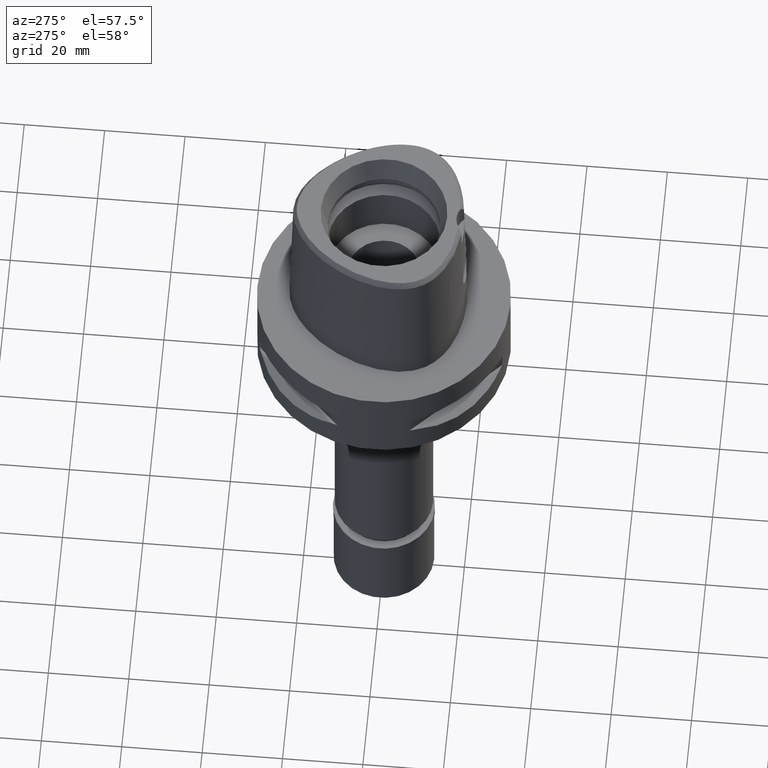
[diagram: clean part render]
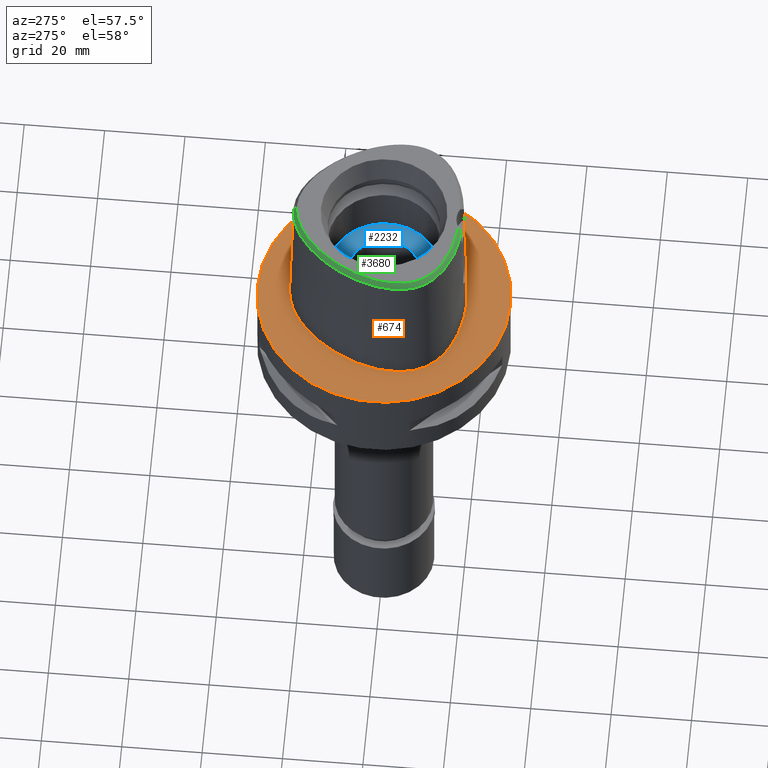
[diagram: same view with three faces highlighted in distinct colors, each labeled with its STEP entity id]
A machine part, auxiliary view with three faces highlighted in distinct colors.
Their STEP definitions:

[orange] entity #674 — the highlighted planar face has unit normal (0, 0, -1).
#23 = CARTESIAN_POINT ( 'NONE',  ( -21.55524825848755199, -8.996025390147901035, 6.677725039594406553E-08 ) ) ;
#40 = CARTESIAN_POINT ( 'NONE',  ( -20.34961798411968559, -11.74885742103685082, 6.677725039594406553E-08 ) ) ;
#68 = CARTESIAN_POINT ( 'NONE',  ( 0.0000000000000000000, 1.292614696500000017E-14, 0.0000000000000000000 ) ) ;
#90 = CARTESIAN_POINT ( 'NONE',  ( 22.24453913892937607, -4.100468749646195121, -2.407935148718504462E-06 ) ) ;
#118 = CARTESIAN_POINT ( 'NONE',  ( 20.74942746575114683, 4.657187520524360913, -2.407935148718504462E-06 ) ) ;
#151 = ORIENTED_EDGE ( 'NONE', *, *, #1140, .F. ) ;
#350 = EDGE_LOOP ( 'NONE', ( #151, #1884 ) ) ;
#355 = DIRECTION ( 'NONE',  ( 0.0000000000000000000, 1.000000000000000000, 0.0000000000000000000 ) ) ;
#435 = DIRECTION ( 'NONE',  ( 0.0000000000000000000, 0.0000000000000000000, -1.000000000000000000 ) ) ;
#473 = CARTESIAN_POINT ( 'NONE',  ( 7.571159464848644660, 21.31457036461463872, -2.407935148718504462E-06 ) ) ;
#479 = PLANE ( 'NONE',  #4853 ) ;
#502 = CARTESIAN_POINT ( 'NONE',  ( -16.95889172489966512, -15.67838867055936980, 6.677725039594406553E-08 ) ) ;
#585 = EDGE_CURVE ( 'NONE', #2911, #2917, #4518, .T. ) ;
#674 = ADVANCED_FACE ( 'NONE', ( #1371, #2418 ), #479, .F. ) ;
#859 = CARTESIAN_POINT ( 'NONE',  ( 4.711967477450999730E-11, 23.47499999999000053, 5.403085386508999448E-14 ) ) ;
#887 = CARTESIAN_POINT ( 'NONE',  ( 14.40795643582930730, 15.64093753906685436, -2.407935148718504462E-06 ) ) ;
#968 = DIRECTION ( 'NONE',  ( 0.0000000000000000000, 0.0000000000000000000, -1.000000000000000000 ) ) ;
#1140 = EDGE_CURVE ( 'NONE', #1216, #3002, #5012, .T. ) ;
#1184 = CARTESIAN_POINT ( 'NONE',  ( -7.571159433505614267, 21.31457031105089683, 6.677725039594406553E-08 ) ) ;
#1216 = VERTEX_POINT ( 'NONE', #5016 ) ;
#1249 = CARTESIAN_POINT ( 'NONE',  ( 22.05732880305950872, -6.847636727349788011, -2.407935148718504462E-06 ) ) ;
#1253 = CARTESIAN_POINT ( 'NONE',  ( -2.113823672965694733, -20.67499999833527369, 6.677725039594406553E-08 ) ) ;
#1274 = CARTESIAN_POINT ( 'NONE',  ( 21.55524831800265417, -8.996025407835238852, -2.407935148718504462E-06 ) ) ;
#1299 = CARTESIAN_POINT ( 'NONE',  ( 16.95889176330869219, -15.67838871939572165, -2.407935148718504462E-06 ) ) ;
#1371 = FACE_OUTER_BOUND ( 'NONE', #350, .T. ) ;
#1389 = AXIS2_PLACEMENT_3D ( 'NONE', #3093, #1940, #355 ) ;
#1546 = CARTESIAN_POINT ( 'NONE',  ( -10.74572890951021620, 19.17433593621954913, 6.677725039594406553E-08 ) ) ;
#1653 = CARTESIAN_POINT ( 'NONE',  ( 0.8548392465738576806, 23.47500006020234053, -2.407935148718504462E-06 ) ) ;
#1680 = CARTESIAN_POINT ( 'NONE',  ( -8.195305841971999878E-12, -20.67499999999999716, 5.691743372911998950E-14 ) ) ;
#1737 = CIRCLE ( 'NONE', #4609, 31.50000000000000000 ) ;
#1884 = ORIENTED_EDGE ( 'NONE', *, *, #2187, .F. ) ;
#1913 = CARTESIAN_POINT ( 'NONE',  ( -5.098437016660154697, 22.52602538907435559, 6.677725039594406553E-08 ) ) ;
#1940 = DIRECTION ( 'NONE',  ( 0.0000000000000000000, 0.0000000000000000000, -1.000000000000000000 ) ) ;
#2030 = CARTESIAN_POINT ( 'NONE',  ( 5.098437039752416133, 22.52602544675025698, -2.407935148718504462E-06 ) ) ;
#2187 = EDGE_CURVE ( 'NONE', #3002, #1216, #1737, .T. ) ;
#2286 = CARTESIAN_POINT ( 'NONE',  ( 4.711967477450999730E-11, 23.47499999999000053, 5.403085386508999448E-14 ) ) ;
#2316 = CARTESIAN_POINT ( 'NONE',  ( 0.0000000000000000000, -31.50000000000000000, 0.0000000000000000000 ) ) ;
#2341 = CARTESIAN_POINT ( 'NONE',  ( -20.74942740721773404, 4.657187499431126199, 6.677725039594406553E-08 ) ) ;
#2368 = CARTESIAN_POINT ( 'NONE',  ( -22.05732874156355905, -6.847636718511155962, 6.677725039594406553E-08 ) ) ;
#2414 = CARTESIAN_POINT ( 'NONE',  ( 21.97832653747405729, -0.2810937394683906132, -2.407935148718504462E-06 ) ) ;
#2418 = FACE_BOUND ( 'NONE', #4933, .T. ) ;
#2438 = CARTESIAN_POINT ( 'NONE',  ( 18.56841069526690546, -14.16937992434574944, -2.407935148718504462E-06 ) ) ;
#2445 = DIRECTION ( 'NONE',  ( 0.0000000000000000000, -1.000000000000000000, 0.0000000000000000000 ) ) ;
#2449 = ORIENTED_EDGE ( 'NONE', *, *, #4491, .F. ) ;
#2471 = CARTESIAN_POINT ( 'NONE',  ( -11.23259756670338483, -18.89324218593095850, 6.677725039594406553E-08 ) ) ;
#2648 = DIRECTION ( 'NONE',  ( 0.0000000000000000000, -1.000000000000000000, 0.0000000000000000000 ) ) ;
#2784 = CARTESIAN_POINT ( 'NONE',  ( -19.64947365728922080, -12.82525390526463305, 6.677725039594406553E-08 ) ) ;
#2791 = ORIENTED_EDGE ( 'NONE', *, *, #585, .F. ) ;
#2812 = CARTESIAN_POINT ( 'NONE',  ( 2.564517739329738255, 23.29328130927307683, -2.407935148718504462E-06 ) ) ;
#2831 = CARTESIAN_POINT ( 'NONE',  ( 2.113823676645627092, -20.67500006019414016, -2.407935148718504462E-06 ) ) ;
#2911 = VERTEX_POINT ( 'NONE', #4159 ) ;
#2917 = VERTEX_POINT ( 'NONE', #4920 ) ;
#3002 = VERTEX_POINT ( 'NONE', #2316 ) ;
#3088 = CARTESIAN_POINT ( 'NONE',  ( -0.8548392421849927425, 23.47499999833045692, 6.677725039594406553E-08 ) ) ;
#3093 = CARTESIAN_POINT ( 'NONE',  ( 0.0000000000000000000, 1.292614696500000017E-14, 0.0000000000000000000 ) ) ;
#3216 = CARTESIAN_POINT ( 'NONE',  ( 11.23259758795887819, -18.89324224437621780, -2.407935148718504462E-06 ) ) ;
#3241 = CARTESIAN_POINT ( 'NONE',  ( 19.64947370741161237, -12.82525394170072985, -2.407935148718504462E-06 ) ) ;
#3480 = B_SPLINE_CURVE_WITH_KNOTS ( 'NONE', 3,
 ( #2286, #3088, #3894, #1913, #1184, #1546, #5055, #4699, #2341, #4328, #3528, #2368, #23, #3945, #40, #2784, #4746, #502, #4356, #2471, #4432, #1253, #4799 ),
 .UNSPECIFIED., .F., .F.,
 ( 4, 1, 1, 1, 1, 1, 1, 1, 1, 1, 1, 1, 1, 1, 1, 1, 1, 1, 1, 1, 4 ),
 ( 0.0000000000000000000, 0.04166666666739000241, 0.08333333333401000964, 0.1250000000005999923, 0.1666666666673000119, 0.2500000000004999889, 0.3333333333337000215, 0.4166666666670000296, 0.5000000000002999823, 0.5416666666668999985, 0.5833333333335000148, 0.6250000000001000311, 0.6458333333333999837, 0.6666666666667999674, 0.6875000000001000311, 0.7083333333333999837, 0.7500000000000000000, 0.7916666666667000474, 0.8333333333332000326, 0.9166666666664999852, 1.000000000000000000 ),
 .UNSPECIFIED. ) ;
#3528 = CARTESIAN_POINT ( 'NONE',  ( -22.24453907687567877, -4.100468750009495622, 6.677725039594406553E-08 ) ) ;
#3894 = CARTESIAN_POINT ( 'NONE',  ( -2.564517726614354842, 23.29328124835615554, 6.677725039594406553E-08 ) ) ;
#3945 = CARTESIAN_POINT ( 'NONE',  ( -20.93173252058131695, -10.60431640557794708, 6.677725039594406553E-08 ) ) ;
#3983 = CARTESIAN_POINT ( 'NONE',  ( 18.06826693766394598, 10.43171878024966759, -2.407935148718504462E-06 ) ) ;
#4006 = CARTESIAN_POINT ( 'NONE',  ( 20.34961803780064926, -11.74885745202729836, -2.407935148718504462E-06 ) ) ;
#4159 = CARTESIAN_POINT ( 'NONE',  ( -8.195305841971999878E-12, -20.67499999999999716, 5.691743372911998950E-14 ) ) ;
#4328 = CARTESIAN_POINT ( 'NONE',  ( -21.97832647621456204, -0.2810937502920597963, 6.677725039594406553E-08 ) ) ;
#4356 = CARTESIAN_POINT ( 'NONE',  ( -14.67337964336471501, -17.21410156104474964, 6.677725039594406553E-08 ) ) ;
#4383 = CARTESIAN_POINT ( 'NONE',  ( 10.74572894951485758, 19.17433598385124327, -2.407935148718504462E-06 ) ) ;
#4406 = CARTESIAN_POINT ( 'NONE',  ( 20.93173257720918201, -10.60431643076686825, -2.407935148718504462E-06 ) ) ;
#4432 = CARTESIAN_POINT ( 'NONE',  ( -6.341471018915012969, -20.29812499835069417, 6.677725039594406553E-08 ) ) ;
#4480 = CARTESIAN_POINT ( 'NONE',  ( 0.0000000000000000000, 1.224646799146999965E-14, 0.0000000000000000000 ) ) ;
#4491 = EDGE_CURVE ( 'NONE', #2917, #2911, #3480, .T. ) ;
#4518 = B_SPLINE_CURVE_WITH_KNOTS ( 'NONE', 3,
 ( #1680, #2831, #4768, #3216, #4796, #1299, #2438, #3241, #4006, #4406, #1274, #1249, #90, #2414, #118, #3983, #887, #4383, #473, #2030, #2812, #1653, #859 ),
 .UNSPECIFIED., .F., .F.,
 ( 4, 1, 1, 1, 1, 1, 1, 1, 1, 1, 1, 1, 1, 1, 1, 1, 1, 1, 1, 1, 4 ),
 ( 0.0000000000000000000, 0.08333333333340001148, 0.1666666666667000196, 0.2083333333333000081, 0.2500000000000000000, 0.2916666666666999919, 0.3125000000000000000, 0.3333333333333000081, 0.3541666666666000163, 0.3749999999998999689, 0.4166666666666000163, 0.4583333333332000326, 0.4999999999998999689, 0.5833333333331000015, 0.6666666666664999852, 0.7499999999998000488, 0.8333333333329999704, 0.8749999999997000177, 0.9166666666664000651, 0.9583333333329999704, 1.000000000000000000 ),
 .UNSPECIFIED. ) ;
#4609 = AXIS2_PLACEMENT_3D ( 'NONE', #68, #435, #2648 ) ;
#4699 = CARTESIAN_POINT ( 'NONE',  ( -18.06826688381874391, 10.43171874916592934, 6.677725039594406553E-08 ) ) ;
#4746 = CARTESIAN_POINT ( 'NONE',  ( -18.56841065020801196, -14.16937988166361784, 6.677725039594406553E-08 ) ) ;
#4768 = CARTESIAN_POINT ( 'NONE',  ( 6.341471029907989276, -20.29812505958370039, -2.407935148718504885E-06 ) ) ;
#4796 = CARTESIAN_POINT ( 'NONE',  ( 14.67337967408136024, -17.21410161496463687, -2.407935148718504462E-06 ) ) ;
#4799 = CARTESIAN_POINT ( 'NONE',  ( -8.195305841971999878E-12, -20.67499999999999716, 5.691743372911998950E-14 ) ) ;
#4853 = AXIS2_PLACEMENT_3D ( 'NONE', #4480, #968, #2445 ) ;
#4920 = CARTESIAN_POINT ( 'NONE',  ( 4.711967477450999730E-11, 23.47499999999000053, 5.403085386508999448E-14 ) ) ;
#4933 = EDGE_LOOP ( 'NONE', ( #2449, #2791 ) ) ;
#5012 = CIRCLE ( 'NONE', #1389, 31.50000000000000000 ) ;
#5016 = CARTESIAN_POINT ( 'NONE',  ( 0.0000000000000000000, 31.50000000000000000, 0.0000000000000000000 ) ) ;
#5055 = CARTESIAN_POINT ( 'NONE',  ( -14.40795638829542114, 15.64093749891294216, 6.677725039594406553E-08 ) ) ;

[blue] entity #2232 — the highlighted planar face has unit normal (0, 0, -1).
#88 = AXIS2_PLACEMENT_3D ( 'NONE', #2560, #3334, #3234 ) ;
#136 = EDGE_CURVE ( 'NONE', #991, #2027, #3850, .T. ) ;
#141 = EDGE_LOOP ( 'NONE', ( #1125, #1307 ) ) ;
#229 = CARTESIAN_POINT ( 'NONE',  ( 0.0000000000000000000, 0.0000000000000000000, 11.00000000000000000 ) ) ;
#331 = CIRCLE ( 'NONE', #88, 9.000000000000000000 ) ;
#583 = AXIS2_PLACEMENT_3D ( 'NONE', #3488, #1212, #2375 ) ;
#991 = VERTEX_POINT ( 'NONE', #1989 ) ;
#1027 = DIRECTION ( 'NONE',  ( 0.0000000000000000000, 1.000000000000000000, 0.0000000000000000000 ) ) ;
#1104 = DIRECTION ( 'NONE',  ( 0.0000000000000000000, 0.0000000000000000000, -1.000000000000000000 ) ) ;
#1125 = ORIENTED_EDGE ( 'NONE', *, *, #1567, .F. ) ;
#1212 = DIRECTION ( 'NONE',  ( 0.0000000000000000000, 0.0000000000000000000, -1.000000000000000000 ) ) ;
#1245 = DIRECTION ( 'NONE',  ( 0.0000000000000000000, 0.0000000000000000000, -1.000000000000000000 ) ) ;
#1307 = ORIENTED_EDGE ( 'NONE', *, *, #2139, .F. ) ;
#1481 = CIRCLE ( 'NONE', #5021, 14.00000000000000000 ) ;
#1527 = DIRECTION ( 'NONE',  ( 0.0000000000000000000, 1.000000000000000000, 0.0000000000000000000 ) ) ;
#1567 = EDGE_CURVE ( 'NONE', #3452, #2338, #331, .T. ) ;
#1597 = ORIENTED_EDGE ( 'NONE', *, *, #2540, .F. ) ;
#1989 = CARTESIAN_POINT ( 'NONE',  ( 0.0000000000000000000, -14.00000000000000000, 11.00000000000000000 ) ) ;
#2027 = VERTEX_POINT ( 'NONE', #3046 ) ;
#2139 = EDGE_CURVE ( 'NONE', #2338, #3452, #4862, .T. ) ;
#2232 = ADVANCED_FACE ( 'NONE', ( #4779, #3923 ), #3537, .F. ) ;
#2276 = AXIS2_PLACEMENT_3D ( 'NONE', #2776, #1245, #3575 ) ;
#2334 = CARTESIAN_POINT ( 'NONE',  ( 0.0000000000000000000, -9.000000000000000000, 11.00000000000000000 ) ) ;
#2338 = VERTEX_POINT ( 'NONE', #3254 ) ;
#2375 = DIRECTION ( 'NONE',  ( 0.0000000000000000000, -1.000000000000000000, 0.0000000000000000000 ) ) ;
#2540 = EDGE_CURVE ( 'NONE', #2027, #991, #1481, .T. ) ;
#2560 = CARTESIAN_POINT ( 'NONE',  ( 0.0000000000000000000, 0.0000000000000000000, 11.00000000000000000 ) ) ;
#2624 = AXIS2_PLACEMENT_3D ( 'NONE', #3970, #3563, #1527 ) ;
#2776 = CARTESIAN_POINT ( 'NONE',  ( 0.0000000000000000000, 0.0000000000000000000, 11.00000000000000000 ) ) ;
#3046 = CARTESIAN_POINT ( 'NONE',  ( 0.0000000000000000000, 14.00000000000000000, 11.00000000000000000 ) ) ;
#3234 = DIRECTION ( 'NONE',  ( 0.0000000000000000000, -1.000000000000000000, 0.0000000000000000000 ) ) ;
#3254 = CARTESIAN_POINT ( 'NONE',  ( 0.0000000000000000000, 9.000000000000000000, 11.00000000000000000 ) ) ;
#3334 = DIRECTION ( 'NONE',  ( 0.0000000000000000000, 0.0000000000000000000, 1.000000000000000000 ) ) ;
#3452 = VERTEX_POINT ( 'NONE', #2334 ) ;
#3488 = CARTESIAN_POINT ( 'NONE',  ( 0.0000000000000000000, 0.0000000000000000000, 11.00000000000000000 ) ) ;
#3537 = PLANE ( 'NONE',  #583 ) ;
#3563 = DIRECTION ( 'NONE',  ( 0.0000000000000000000, 0.0000000000000000000, 1.000000000000000000 ) ) ;
#3575 = DIRECTION ( 'NONE',  ( 0.0000000000000000000, -1.000000000000000000, 0.0000000000000000000 ) ) ;
#3695 = EDGE_LOOP ( 'NONE', ( #4882, #1597 ) ) ;
#3850 = CIRCLE ( 'NONE', #2276, 14.00000000000000000 ) ;
#3923 = FACE_BOUND ( 'NONE', #141, .T. ) ;
#3970 = CARTESIAN_POINT ( 'NONE',  ( 0.0000000000000000000, 0.0000000000000000000, 11.00000000000000000 ) ) ;
#4779 = FACE_OUTER_BOUND ( 'NONE', #3695, .T. ) ;
#4862 = CIRCLE ( 'NONE', #2624, 9.000000000000000000 ) ;
#4882 = ORIENTED_EDGE ( 'NONE', *, *, #136, .F. ) ;
#5021 = AXIS2_PLACEMENT_3D ( 'NONE', #229, #1104, #1027 ) ;

[green] entity #3680 — the highlighted face is a freeform B-spline surface patch.
#26 = CARTESIAN_POINT ( 'NONE',  ( -19.51577024267999860, -11.54472328312000151, 36.34174567082000351 ) ) ;
#43 = CARTESIAN_POINT ( 'NONE',  ( -19.22227857008000029, -10.58840199542999905, 37.56729868053999866 ) ) ;
#48 = EDGE_CURVE ( 'NONE', #1218, #4425, #177, .T. ) ;
#53 = CARTESIAN_POINT ( 'NONE',  ( -2.709705915518000108, 21.24217921392999742, 38.18007533450999347 ) ) ;
#66 = CARTESIAN_POINT ( 'NONE',  ( -18.82582230810999846, -11.94127112729999851, 36.95452193082000036 ) ) ;
#79 = CARTESIAN_POINT ( 'NONE',  ( -7.073727612807000575, 20.18781767928999926, 36.95452211752999716 ) ) ;
#99 = CARTESIAN_POINT ( 'NONE',  ( -15.65221876210000040, -14.21443135166000182, 38.18007538333999662 ) ) ;
#114 = CARTESIAN_POINT ( 'NONE',  ( -9.456391749330000707, 17.62343039618000162, 38.18007523011999638 ) ) ;
#123 = CARTESIAN_POINT ( 'NONE',  ( -12.32565577361000031, -16.24470595266999950, 38.18007541937999605 ) ) ;
#137 = CARTESIAN_POINT ( 'NONE',  ( -11.64788340219999974, 16.10743939928999779, 37.56729976607000054 ) ) ;
#148 = CARTESIAN_POINT ( 'NONE',  ( -9.002975409753000591, -17.89558673160999902, 37.56729986448999625 ) ) ;
#161 = B_SPLINE_SURFACE_WITH_KNOTS ( 'NONE', 3, 3, ( 
 ( #4264, #4294, #1979, #1950 ),
 ( #777, #4717, #1198, #4423 ),
 ( #1999, #2022, #3596, #1644 ),
 ( #1614, #4057, #908, #2805 ),
 ( #1698, #827, #4377, #4870 ),
 ( #3210, #2464, #2408, #3977 ),
 ( #53, #4760, #447, #4843 ),
 ( #1243, #2827, #879, #938 ),
 ( #2883, #4032, #467, #3573 ),
 ( #524, #3182, #3291, #1342 ),
 ( #2077, #854, #1317, #492 ),
 ( #2904, #2432, #79, #4789 ),
 ( #3960, #4451, #1269, #4400 ),
 ( #4000, #2388, #2051, #3631 ),
 ( #114, #1722, #1675, #3238 ),
 ( #166, #4817, #1295, #2853 ),
 ( #3656, #137, #3259, #2488 ),
 ( #548, #2100, #3681, #4472 ),
 ( #1502, #737, #566, #2122 ),
 ( #1363, #1450, #354, #4492 ),
 ( #3429, #1524, #324, #2657 ),
 ( #1892, #2511, #5037, #3407 ),
 ( #960, #3015, #4081, #2927 ),
 ( #4592, #3705, #1918, #1842 ),
 ( #3485, #3874, #5010, #659 ),
 ( #2679, #196, #4984, #1753 ),
 ( #2293, #3844, #3316, #1128 ),
 ( #2241, #3067, #5060, #4889 ),
 ( #985, #2535, #1080, #4107 ),
 ( #1862, #2217, #3798, #4249 ),
 ( #279, #2631, #4200, #4651 ),
 ( #688, #3820, #303, #3462 ),
 ( #1474, #3044, #4625, #1105 ),
 ( #4223, #711, #2263, #2765 ),
 ( #2422, #3195, #3092, #1961 ),
 ( #4750, #4282, #4309, #4675 ),
 ( #1604, #3561, #768, #790 ),
 ( #3920, #2321, #3898, #1256 ),
 ( #4382, #3535, #3968, #1155 ),
 ( #2038, #382, #404, #1229 ),
 ( #1187, #43, #3990, #2711 ),
 ( #2011, #2742, #3507, #26 ),
 ( #4777, #433, #66, #3171 ),
 ( #1939, #2816, #2789, #1551 ),
 ( #3613, #2346, #4362, #3127 ),
 ( #4332, #839, #3150, #1210 ),
 ( #4703, #1583, #812, #481 ),
 ( #99, #4728, #2372, #2396 ),
 ( #3586, #3950, #457, #1988 ),
 ( #1629, #4388, #866, #4897 ),
 ( #4437, #1661, #4856, #4879 ),
 ( #123, #1710, #3667, #3222 ),
 ( #4044, #3643, #2552, #995 ),
 ( #2868, #4118, #1373, #4802 ),
 ( #2447, #148, #4503, #970 ),
 ( #3326, #1281, #4461, #3720 ),
 ( #2839, #4412, #2160, #1686 ),
 ( #607, #3248, #4068, #896 ),
 ( #2937, #206, #1305, #4014 ),
 ( #1766, #3741, #510, #1332 ),
 ( #556, #3274, #2066, #1353 ),
 ( #4830, #926, #2477, #536 ) ),
 .UNSPECIFIED., .F., .F., .F.,
 ( 4, 1, 1, 1, 1, 1, 1, 1, 1, 1, 1, 1, 1, 1, 1, 1, 1, 1, 1, 1, 1, 1, 1, 1, 1, 1, 1, 1, 1, 1, 1, 1, 1, 1, 1, 1, 1, 1, 1, 1, 1, 1, 1, 1, 1, 1, 1, 1, 1, 1, 1, 1, 1, 1, 1, 1, 1, 1, 1, 4 ),
 ( 4, 4 ),
 ( -0.01585043674195000044, 0.0000000000000000000, 0.01776034072165999858, 0.03552068144391999638, 0.05328102216616999870, 0.07104136288842999303, 0.08880170361069000817, 0.1065620443330000111, 0.1243223850551999909, 0.1420827257775000019, 0.1598430664997000095, 0.1776034072219000171, 0.1953637479442000002, 0.2131240886664000078, 0.2308844293887999943, 0.2486447701109999742, 0.2664051108332999851, 0.2841654515554999927, 0.3019257922778000314, 0.3196861329999999835, 0.3374464737223000221, 0.3552068144444999742, 0.3729671551668000129, 0.3907274958890999961, 0.4084878366113000037, 0.4262481773335999868, 0.4440085180557999944, 0.4617688587780999776, 0.4795291995003000407, 0.4972895402225999684, 0.5150498809447999760, 0.5328102216671000146, 0.5505705623893999423, 0.5683309031115999499, 0.5860912438338999886, 0.6038515845561001072, 0.6216119252783999238, 0.6393722660005999314, 0.6571326067228999701, 0.6748929474452000088, 0.6926532881674000164, 0.7104136288896999440, 0.7281739696118999516, 0.7459343103341999903, 0.7636946510563999979, 0.7814549917787000366, 0.7992153325008999332, 0.8169756732231999719, 0.8347360139455000105, 0.8524963546678000492, 0.8702566953900000568, 0.8880170361122000644, 0.9057773768344999921, 0.9235377175566999997, 0.9412980582790000383, 0.9590583990012000459, 0.9768187397236000047, 0.9945790804457999013, 1.000000000000000000, 1.006922200500000031 ),
 ( -0.09790922901656999577, 1.097934098618000176 ),
 .UNSPECIFIED. ) ;
#166 = CARTESIAN_POINT ( 'NONE',  ( -10.41760412866999985, 16.78771396351000078, 38.18007495732999956 ) ) ;
#177 = B_SPLINE_CURVE_WITH_KNOTS ( 'NONE', 3,
 ( #4955, #2236, #2184, #1099, #3037, #1494, #2675, #1047, #2574, #2260, #4142, #2596, #2969, #4979, #3062, #2621, #4163, #1788, #1446, #1857, #1123, #3764, #3794, #650, #628, #4244, #2208, #3816, #3376, #247, #3010, #4587, #4195, #4619, #2653, #4219, #3838, #2360, #3886, #3936, #419, #4212, #370, #2756, #2729, #3081, #1929, #3029, #4322, #3498, #3110, #1537, #3476, #1199, #5074, #3551, #2335, #1174, #801, #4295 ),
 .UNSPECIFIED., .F., .F.,
 ( 4, 1, 1, 1, 1, 1, 1, 1, 1, 1, 1, 1, 1, 1, 1, 1, 1, 1, 1, 1, 1, 1, 1, 1, 1, 1, 1, 1, 1, 1, 1, 1, 1, 1, 1, 1, 1, 1, 1, 1, 1, 1, 1, 1, 1, 1, 1, 1, 1, 1, 1, 1, 1, 1, 1, 1, 1, 4 ),
 ( 0.0000000000000000000, 0.005420919554200098744, 0.02318126027639999531, 0.04094160099879995407, 0.05870194172099996166, 0.07646228244330000035, 0.09422262316550000794, 0.1119829638877999356, 0.1297433046099999432, 0.1475036453321999508, 0.1652639860544999895, 0.1830243267768000281, 0.2007846674991000668, 0.2185450082212999634, 0.2363053489436000021, 0.2540656896658000097, 0.2718260303881000484, 0.2895863711103000560, 0.3073467118325999836, 0.3251070525547999912, 0.3428673932771000299, 0.3606277339994000686, 0.3783880747216000762, 0.3961484154438998928, 0.4139087561661000114, 0.4316690968884000501, 0.4494294376106000577, 0.4671897783328999854, 0.4849501190552000240, 0.5027104597774000316, 0.5204708004996999593, 0.5382311412219000779, 0.5559914819442000056, 0.5737518226664000132, 0.5915121633886999408, 0.6092725041108999484, 0.6270328448331999871, 0.6447931855555000258, 0.6625535262777000334, 0.6803138669999999610, 0.6980742077221999686, 0.7158345484445000073, 0.7335948891667000149, 0.7513552298890000536, 0.7691155706112000612, 0.7868759113336000199, 0.8046362520558000275, 0.8223965927780999552, 0.8401569335002999628, 0.8579172742224999704, 0.8756776149448000091, 0.8934379556670000166, 0.9111982963893099363, 0.9289586371115700070, 0.9467189778338299666, 0.9644793185560800453, 0.9822396592783400049, 1.000000000000000000 ),
 .UNSPECIFIED. ) ;
#196 = CARTESIAN_POINT ( 'NONE',  ( -19.03719997454999913, 4.343904133815001067, 37.56729859394999949 ) ) ;
#206 = CARTESIAN_POINT ( 'NONE',  ( -3.549826626275999875, -18.96280326132000127, 37.56729899199999778 ) ) ;
#247 = CARTESIAN_POINT ( 'NONE',  ( -20.38301517462823043, -3.278344853327994191, 38.00000000000507328 ) ) ;
#279 = CARTESIAN_POINT ( 'NONE',  ( -20.19888289464999787, -2.187820451994999971, 38.18007544756000016 ) ) ;
#303 = CARTESIAN_POINT ( 'NONE',  ( -21.00137751862999735, -3.250518905087999677, 36.95452209264999510 ) ) ;
#310 = CARTESIAN_POINT ( 'NONE',  ( -4.757642277159038535, 21.67478330407260856, 36.52186244847992924 ) ) ;
#324 = CARTESIAN_POINT ( 'NONE',  ( -15.76238407262000152, 11.59976021285000058, 36.95452275617000026 ) ) ;
#354 = CARTESIAN_POINT ( 'NONE',  ( -14.84265240859999935, 12.91427622444999912, 36.95452257528000217 ) ) ;
#370 = CARTESIAN_POINT ( 'NONE',  ( -13.40435640711846865, 13.76268382997141160, 37.99999999999711520 ) ) ;
#382 = CARTESIAN_POINT ( 'NONE',  ( -19.51991424086999771, -9.974070461955999889, 37.56729880604000726 ) ) ;
#390 = CARTESIAN_POINT ( 'NONE',  ( -13.70645028111319697, 15.04851272300566301, 36.52186244847992924 ) ) ;
#404 = CARTESIAN_POINT ( 'NONE',  ( -19.85129299858000351, -10.12190117867999817, 36.95452223357000321 ) ) ;
#419 = CARTESIAN_POINT ( 'NONE',  ( -15.24692477332567719, 11.25717358965985149, 38.00000000000294875 ) ) ;
#433 = CARTESIAN_POINT ( 'NONE',  ( -18.52787341081000250, -11.73416337277999943, 37.56729868073999512 ) ) ;
#447 = CARTESIAN_POINT ( 'NONE',  ( -2.886603961509999650, 21.94597712488000241, 36.95452248910000037 ) ) ;
#457 = CARTESIAN_POINT ( 'NONE',  ( -15.35586084377000127, -15.33474776619000046, 36.95452273379000019 ) ) ;
#467 = CARTESIAN_POINT ( 'NONE',  ( -4.474972378303999854, 21.44506834567000197, 36.95452209743000083 ) ) ;
#481 = CARTESIAN_POINT ( 'NONE',  ( -17.00892907403000009, -14.50174127911999911, 36.34174527671999755 ) ) ;
#492 = CARTESIAN_POINT ( 'NONE',  ( -6.344767709270000111, 21.00434887073999946, 36.34174611868000682 ) ) ;
#510 = CARTESIAN_POINT ( 'NONE',  ( -2.687177148912000213, -19.40214549348999995, 36.95452275451999924 ) ) ;
#524 = CARTESIAN_POINT ( 'NONE',  ( -5.014610954122999509, 20.43715952859999874, 38.18007534422000049 ) ) ;
#536 = CARTESIAN_POINT ( 'NONE',  ( -2.128867215016999825, -19.80325351503000064, 36.34174638098999566 ) ) ;
#548 = CARTESIAN_POINT ( 'NONE',  ( -12.36174846899000102, 14.82017016924999986, 38.18007530277999706 ) ) ;
#556 = CARTESIAN_POINT ( 'NONE',  ( -2.266531505455999795, -18.70484104591000118, 38.18007529447000081 ) ) ;
#566 = CARTESIAN_POINT ( 'NONE',  ( -13.88489454936000023, 14.15275647916999979, 36.95452178731999737 ) ) ;
#607 = CARTESIAN_POINT ( 'NONE',  ( -4.691908606074999710, -18.46168588453999959, 38.18007539552999674 ) ) ;
#628 = CARTESIAN_POINT ( 'NONE',  ( -19.98419490691276224, -7.809898894996002205, 38.00000000000449774 ) ) ;
#650 = CARTESIAN_POINT ( 'NONE',  ( -19.78262210840224355, -8.543146992552129504, 38.00000000000041922 ) ) ;
#659 = CARTESIAN_POINT ( 'NONE',  ( -19.14829162164000209, 6.050989308556999902, 36.34174580920999631 ) ) ;
#669 = CARTESIAN_POINT ( 'NONE',  ( -21.07430010673184384, -0.4408303445192592318, 36.52186244847992924 ) ) ;
#688 = CARTESIAN_POINT ( 'NONE',  ( -20.27650709121000006, -3.283137655550000478, 38.18007540280000001 ) ) ;
#711 = CARTESIAN_POINT ( 'NONE',  ( -20.61964652181000091, -5.295044266904000096, 37.56729902049999481 ) ) ;
#737 = CARTESIAN_POINT ( 'NONE',  ( -13.60324100760000121, 13.92412667117999980, 37.56729862134999820 ) ) ;
#768 = CARTESIAN_POINT ( 'NONE',  ( -20.58584090893999985, -7.955667380076999251, 36.95452203214999543 ) ) ;
#777 = CARTESIAN_POINT ( 'NONE',  ( 0.3873769953316000270, 21.57540079941000144, 38.18007539961999441 ) ) ;
#790 = CARTESIAN_POINT ( 'NONE',  ( -20.93847832198999726, -8.041105364059999872, 36.34174534161000025 ) ) ;
#801 = CARTESIAN_POINT ( 'NONE',  ( -0.2181979014508364234, 21.68728795388774699, 37.99999999999683098 ) ) ;
#812 = CARTESIAN_POINT ( 'NONE',  ( -16.76924930822000093, -14.22933917359000056, 36.95452199124000714 ) ) ;
#827 = CARTESIAN_POINT ( 'NONE',  ( -1.355527033244999791, 21.86522585636999949, 37.56729860136000099 ) ) ;
#839 = CARTESIAN_POINT ( 'NONE',  ( -17.11669153461999571, -13.40796018514999943, 37.56729873284999854 ) ) ;
#854 = CARTESIAN_POINT ( 'NONE',  ( -6.011284941390000469, 20.35989039468999806, 37.56729892545000382 ) ) ;
#866 = CARTESIAN_POINT ( 'NONE',  ( -14.53402042521000048, -15.87262704635000077, 36.95452242989000524 ) ) ;
#879 = CARTESIAN_POINT ( 'NONE',  ( -3.667303016436000540, 21.72545243345999921, 36.95452240619000150 ) ) ;
#896 = CARTESIAN_POINT ( 'NONE',  ( -4.845914720557000344, -19.53903356000000002, 36.34174550448999952 ) ) ;
#908 = CARTESIAN_POINT ( 'NONE',  ( -0.6886897876754000114, 22.29165903920999980, 36.95452196051999749 ) ) ;
#926 = CARTESIAN_POINT ( 'NONE',  ( -2.084332478709000291, -19.07936693406000117, 37.56729899389999616 ) ) ;
#938 = CARTESIAN_POINT ( 'NONE',  ( -3.776489060904999917, 22.07147187272999744, 36.34174593488999960 ) ) ;
#960 = CARTESIAN_POINT ( 'NONE',  ( -16.79252138944000095, 8.467458297814999924, 38.18007535637999439 ) ) ;
#963 = ORIENTED_EDGE ( 'NONE', *, *, #48, .T. ) ;
#970 = CARTESIAN_POINT ( 'NONE',  ( -9.209393972512000204, -18.59116125751999604, 36.34174971740999638 ) ) ;
#982 = B_SPLINE_CURVE_WITH_KNOTS ( 'NONE', 3,
 ( #3130, #3095, #1965, #3589 ),
 .UNSPECIFIED., .F., .F.,
 ( 4, 4 ),
 ( 0.0000000000000000000, 1.000000000000000000 ),
 .UNSPECIFIED. ) ;
#985 = CARTESIAN_POINT ( 'NONE',  ( -19.83743160694999830, 0.2029421839484999990, 38.18007501251999969 ) ) ;
#995 = CARTESIAN_POINT ( 'NONE',  ( -11.69138379313000087, -17.71591657045999924, 36.34174521407000213 ) ) ;
#1047 = CARTESIAN_POINT ( 'NONE',  ( -10.17136073855090217, -17.24644253470494348, 38.00000000000175504 ) ) ;
#1060 = CARTESIAN_POINT ( 'NONE',  ( -18.90964971337874445, -12.28759719904926939, 36.52186244847992924 ) ) ;
#1067 = EDGE_LOOP ( 'NONE', ( #963, #1141, #2383, #4594 ) ) ;
#1080 = CARTESIAN_POINT ( 'NONE',  ( -20.54834970262000127, 0.3479890664577000026, 36.95452435852000406 ) ) ;
#1099 = CARTESIAN_POINT ( 'NONE',  ( -4.706994425064331189, -18.56721852572915665, 38.00000000000480327 ) ) ;
#1105 = CARTESIAN_POINT ( 'NONE',  ( -21.38237033865000214, -4.320580781071000409, 36.34174564295999943 ) ) ;
#1123 = CARTESIAN_POINT ( 'NONE',  ( -18.99520880204269702, -10.46968343926387313, 38.00000000000645883 ) ) ;
#1128 = CARTESIAN_POINT ( 'NONE',  ( -20.20093136266000045, 3.159256270220999863, 36.34174758148000706 ) ) ;
#1141 = ORIENTED_EDGE ( 'NONE', *, *, #3402, .F. ) ;
#1155 = CARTESIAN_POINT ( 'NONE',  ( -20.46882882443000184, -9.572361579315998625, 36.34174593856999991 ) ) ;
#1174 = CARTESIAN_POINT ( 'NONE',  ( -0.6498990081534303798, 21.67378274707824914, 38.00000000000031974 ) ) ;
#1187 = CARTESIAN_POINT ( 'NONE',  ( -18.90071016187000197, -10.42027685282999983, 38.18007543075999877 ) ) ;
#1198 = CARTESIAN_POINT ( 'NONE',  ( 0.4143244637226999871, 22.30027596042999960, 36.95452211106000107 ) ) ;
#1199 = CARTESIAN_POINT ( 'NONE',  ( -3.481017203588607334, 21.13509756881874679, 38.00000000000183320 ) ) ;
#1210 = CARTESIAN_POINT ( 'NONE',  ( -17.62739003704999874, -13.92352300903000106, 36.34174538058000081 ) ) ;
#1218 = VERTEX_POINT ( 'NONE', #1825 ) ;
#1229 = CARTESIAN_POINT ( 'NONE',  ( -20.18267175628000132, -10.26973189541000053, 36.34174566109000182 ) ) ;
#1243 = CARTESIAN_POINT ( 'NONE',  ( -3.448930927496999921, 21.03341355494000098, 38.18007534878999820 ) ) ;
#1256 = CARTESIAN_POINT ( 'NONE',  ( -20.72141609707999876, -8.830925687207001218, 36.34174544654000272 ) ) ;
#1269 = CARTESIAN_POINT ( 'NONE',  ( -7.997776433323000589, 19.61007962229999890, 36.95452214121999646 ) ) ;
#1281 = CARTESIAN_POINT ( 'NONE',  ( -7.660004393464999950, -18.25899357563000081, 37.56729954251999715 ) ) ;
#1295 = CARTESIAN_POINT ( 'NONE',  ( -10.90775697164999869, 17.32267925348000048, 36.95452467894999415 ) ) ;
#1305 = CARTESIAN_POINT ( 'NONE',  ( -3.587963665356999954, -19.32348383062000252, 36.95452268285999509 ) ) ;
#1317 = CARTESIAN_POINT ( 'NONE',  ( -6.178026325330000290, 20.68211963270999831, 36.95452252207000043 ) ) ;
#1332 = CARTESIAN_POINT ( 'NONE',  ( -2.715631059908000022, -19.76367156836000305, 36.34174648738999736 ) ) ;
#1342 = CARTESIAN_POINT ( 'NONE',  ( -5.459805926515000074, 21.43041757397000069, 36.34174597698000042 ) ) ;
#1353 = CARTESIAN_POINT ( 'NONE',  ( -2.339998441831999454, -19.79026084751999903, 36.34174643507999747 ) ) ;
#1363 = CARTESIAN_POINT ( 'NONE',  ( -14.25813901058000077, 12.48446598380999895, 38.18007531965999846 ) ) ;
#1373 = CARTESIAN_POINT ( 'NONE',  ( -10.37711435047999942, -17.83020086738000032, 36.95452377315999826 ) ) ;
#1446 = CARTESIAN_POINT ( 'NONE',  ( -18.31748213707299655, -11.58791794387819962, 37.99999999999435119 ) ) ;
#1450 = CARTESIAN_POINT ( 'NONE',  ( -14.55039570959000095, 12.69937110412999992, 37.56729894747000031 ) ) ;
#1456 = CARTESIAN_POINT ( 'NONE',  ( -21.14970188363471948, -6.717195958887746343, 36.52186244847992924 ) ) ;
#1474 = CARTESIAN_POINT ( 'NONE',  ( -20.29398878694000175, -4.310422545520999904, 38.18007538049999994 ) ) ;
#1494 = CARTESIAN_POINT ( 'NONE',  ( -7.599370508969999882, -18.01010694911019172, 38.00000000000370193 ) ) ;
#1502 = CARTESIAN_POINT ( 'NONE',  ( -13.32158746584000042, 13.69549686319999893, 38.18007545537999903 ) ) ;
#1509 = CARTESIAN_POINT ( 'NONE',  ( -19.55745547456150746, -11.29150218116359383, 36.52186244847992924 ) ) ;
#1524 = CARTESIAN_POINT ( 'NONE',  ( -15.46026250408000102, 11.39896296639000006, 37.56729902233999496 ) ) ;
#1533 = CARTESIAN_POINT ( 'NONE',  ( -3.637738201363999835, -19.56971413236999879, 36.52186244848000030 ) ) ;
#1537 = CARTESIAN_POINT ( 'NONE',  ( -5.058220461388800437, 20.53445508814578702, 38.00000000000174794 ) ) ;
#1551 = CARTESIAN_POINT ( 'NONE',  ( -18.68025019072999982, -12.74687465352000082, 36.34174608928000083 ) ) ;
#1583 = CARTESIAN_POINT ( 'NONE',  ( -16.52956954242000265, -13.95693706805000112, 37.56729870574999808 ) ) ;
#1604 = CARTESIAN_POINT ( 'NONE',  ( -19.88056608281999971, -7.784791412110999786, 38.18007541322000264 ) ) ;
#1614 = CARTESIAN_POINT ( 'NONE',  ( -0.6432175993867998987, 21.56735838230000013, 38.18007542555000100 ) ) ;
#1629 = CARTESIAN_POINT ( 'NONE',  ( -14.15420877795000010, -15.25434426209000094, 38.18007534470999786 ) ) ;
#1644 = CARTESIAN_POINT ( 'NONE',  ( -0.02769437992267999998, 22.67520924724000153, 36.34174580183999836 ) ) ;
#1661 = CARTESIAN_POINT ( 'NONE',  ( -13.45654204072000049, -16.07677705325000161, 37.56729873955000443 ) ) ;
#1675 = CARTESIAN_POINT ( 'NONE',  ( -9.918813969580000389, 18.18255593351000243, 36.95452309514000433 ) ) ;
#1686 = CARTESIAN_POINT ( 'NONE',  ( -6.373961364708000232, -19.28230767226999731, 36.34174529258999797 ) ) ;
#1698 = CARTESIAN_POINT ( 'NONE',  ( -1.310418627068000053, 21.50518363276999878, 38.18007546371000416 ) ) ;
#1710 = CARTESIAN_POINT ( 'NONE',  ( -12.48106830018000046, -16.57253022581999957, 37.56729870785000003 ) ) ;
#1722 = CARTESIAN_POINT ( 'NONE',  ( -9.687602859454997883, 17.90299316484999892, 37.56729916263000035 ) ) ;
#1753 = CARTESIAN_POINT ( 'NONE',  ( -19.71894537342000220, 4.592152875827000713, 36.34174484825999940 ) ) ;
#1766 = CARTESIAN_POINT ( 'NONE',  ( -2.630269326921999884, -18.67909334374000352, 38.18007528879000034 ) ) ;
#1788 = CARTESIAN_POINT ( 'NONE',  ( -17.91005512243627606, -12.13778127739842283, 37.99999999999964473 ) ) ;
#1825 = CARTESIAN_POINT ( 'NONE',  ( -2.682279906006999948, -18.78035848609999903, 38.00000000000000000 ) ) ;
#1842 = CARTESIAN_POINT ( 'NONE',  ( -18.49044858437000016, 7.521140726944000043, 36.34174651930000266 ) ) ;
#1857 = CARTESIAN_POINT ( 'NONE',  ( -18.67608643721239403, -11.03561202291155574, 38.00000000000592593 ) ) ;
#1862 = CARTESIAN_POINT ( 'NONE',  ( -20.05471870408999990, -1.025655184397999964, 38.18007534261999325 ) ) ;
#1868 = CARTESIAN_POINT ( 'NONE',  ( -0.7901461696974454441, 22.56201478746679356, 36.52186244847992924 ) ) ;
#1892 = CARTESIAN_POINT ( 'NONE',  ( -16.00658831536000193, 9.853993159814999458, 38.18007539693999774 ) ) ;
#1918 = CARTESIAN_POINT ( 'NONE',  ( -18.16297784450000208, 7.365063277794999586, 36.95452277464000446 ) ) ;
#1929 = CARTESIAN_POINT ( 'NONE',  ( -9.524337278000722051, 17.70558492631310088, 37.99999999999862865 ) ) ;
#1939 = CARTESIAN_POINT ( 'NONE',  ( -17.82641706691999772, -12.07163779284000249, 38.18007533201999593 ) ) ;
#1950 = CARTESIAN_POINT ( 'NONE',  ( 0.6490125255455999609, 22.65115448071000159, 36.34174498084000504 ) ) ;
#1961 = CARTESIAN_POINT ( 'NONE',  ( -21.25362741082999918, -6.300696622787000045, 36.34174593827999900 ) ) ;
#1965 = CARTESIAN_POINT ( 'NONE',  ( -3.339321438874629955, -19.25325016374967646, 37.10705438590807148 ) ) ;
#1979 = CARTESIAN_POINT ( 'NONE',  ( 0.6288997108420000259, 22.28910184877999967, 36.95452180468999615 ) ) ;
#1988 = CARTESIAN_POINT ( 'NONE',  ( -15.56270585933000028, -15.63283011382999810, 36.34174645450000440 ) ) ;
#1999 = CARTESIAN_POINT ( 'NONE',  ( -0.02532754790984999976, 21.58668715680000005, 38.18007536322999584 ) ) ;
#2011 = CARTESIAN_POINT ( 'NONE',  ( -18.58490236757999980, -10.98032593034000115, 38.18007537746999702 ) ) ;
#2022 = CARTESIAN_POINT ( 'NONE',  ( -0.02611649191412999949, 21.94952785361000025, 37.56729884277000764 ) ) ;
#2038 = CARTESIAN_POINT ( 'NONE',  ( -19.18853548316999991, -9.826239745228999567, 38.18007537852000155 ) ) ;
#2051 = CARTESIAN_POINT ( 'NONE',  ( -8.947487535143999082, 18.94332600208999651, 36.95452177722999920 ) ) ;
#2066 = CARTESIAN_POINT ( 'NONE',  ( -2.315509463040000160, -19.42845424697999945, 36.95452272154999918 ) ) ;
#2077 = CARTESIAN_POINT ( 'NONE',  ( -5.844543557449999760, 20.03766115666000047, 38.18007532883999744 ) ) ;
#2100 = CARTESIAN_POINT ( 'NONE',  ( -12.63200764854000013, 15.06216767668999879, 37.56729898803999390 ) ) ;
#2122 = CARTESIAN_POINT ( 'NONE',  ( -14.16654809111999924, 14.38138628714999889, 36.34174495328999654 ) ) ;
#2154 = DIRECTION ( 'NONE',  ( -1.028883924827013066E-11, -0.5092834681090075977, 0.8605988316927122295 ) ) ;
#2157 = EDGE_CURVE ( 'NONE', #1218, #3250, #982, .T. ) ;
#2160 = CARTESIAN_POINT ( 'NONE',  ( -6.305381870784999343, -18.92607920208999772, 36.95452200124000086 ) ) ;
#2184 = CARTESIAN_POINT ( 'NONE',  ( -3.522896839653820056, -18.70811514173002976, 37.99999999999810996 ) ) ;
#2208 = CARTESIAN_POINT ( 'NONE',  ( -20.27898581531900035, -6.181921586190092910, 37.99999999999917577 ) ) ;
#2217 = CARTESIAN_POINT ( 'NONE',  ( -20.41342059302999701, -0.9713552467953999736, 37.56729889233000108 ) ) ;
#2225 = CARTESIAN_POINT ( 'NONE',  ( -20.67704215115955790, -8.734985316449469295, 36.52186244847992924 ) ) ;
#2236 = CARTESIAN_POINT ( 'NONE',  ( -2.841965291530565096, -18.76757795571897702, 38.00000000000000711 ) ) ;
#2241 = CARTESIAN_POINT ( 'NONE',  ( -19.54108228839000105, 1.493737602029999945, 38.18007492929000080 ) ) ;
#2248 = CARTESIAN_POINT ( 'NONE',  ( -17.27359245833280355, 9.972912913898566600, 36.52186244847992924 ) ) ;
#2260 = CARTESIAN_POINT ( 'NONE',  ( -12.37132652997723170, -16.34104299087847068, 37.99999999999593570 ) ) ;
#2263 = CARTESIAN_POINT ( 'NONE',  ( -20.98170348434999966, -5.318515144880000101, 36.95452275173000345 ) ) ;
#2293 = CARTESIAN_POINT ( 'NONE',  ( -19.16141843585999993, 2.837004395060999773, 38.18007516998000028 ) ) ;
#2321 = CARTESIAN_POINT ( 'NONE',  ( -20.02758892094000132, -8.618239324199000961, 37.56729875005999730 ) ) ;
#2329 = CARTESIAN_POINT ( 'NONE',  ( -16.39211280192077425, -14.95758113319330107, 36.52186244847992924 ) ) ;
#2335 = CARTESIAN_POINT ( 'NONE',  ( -1.323674540693978718, 21.61098849315493098, 38.00000000000478195 ) ) ;
#2346 = CARTESIAN_POINT ( 'NONE',  ( -17.64211168302999866, -12.85453524715999940, 37.56729877173000176 ) ) ;
#2360 = CARTESIAN_POINT ( 'NONE',  ( -17.60426951086781955, 7.098774535281095588, 37.99999999999553779 ) ) ;
#2372 = CARTESIAN_POINT ( 'NONE',  ( -16.09915671950000160, -14.78611446148000041, 36.95452220559000267 ) ) ;
#2383 = ORIENTED_EDGE ( 'NONE', *, *, #4125, .F. ) ;
#2388 = CARTESIAN_POINT ( 'NONE',  ( -8.731052354084001266, 18.65216534832000050, 37.56729861718000052 ) ) ;
#2396 = CARTESIAN_POINT ( 'NONE',  ( -16.32262569819999953, -15.07195601638999882, 36.34174561672000436 ) ) ;
#2408 = CARTESIAN_POINT ( 'NONE',  ( -2.131448090653999650, 22.11121457075999786, 36.95452210485999700 ) ) ;
#2422 = CARTESIAN_POINT ( 'NONE',  ( -20.17314622840000027, -6.169023408164999722, 38.18007534841999728 ) ) ;
#2432 = CARTESIAN_POINT ( 'NONE',  ( -6.889513363337000484, 19.87525714468000260, 37.56729875802000151 ) ) ;
#2447 = CARTESIAN_POINT ( 'NONE',  ( -8.899766128372998963, -17.54779946865999918, 38.18007493804000063 ) ) ;
#2464 = CARTESIAN_POINT ( 'NONE',  ( -2.064382407704000055, 21.75461481788999762, 37.56729875277000019 ) ) ;
#2477 = CARTESIAN_POINT ( 'NONE',  ( -2.106599846863000280, -19.44131022455000135, 36.95452268743999724 ) ) ;
#2488 = CARTESIAN_POINT ( 'NONE',  ( -12.16405357248999941, 16.61733266141000342, 36.34174934022999537 ) ) ;
#2511 = CARTESIAN_POINT ( 'NONE',  ( -16.31785484246999829, 10.04029914780000077, 37.56729876180000360 ) ) ;
#2535 = CARTESIAN_POINT ( 'NONE',  ( -20.19289065479000200, 0.2754656252031000285, 37.56729968551999832 ) ) ;
#2551 = VECTOR ( 'NONE', #2154, 1000.000000000000227 ) ;
#2552 = CARTESIAN_POINT ( 'NONE',  ( -11.55337317454999990, -17.38040191025999803, 36.95452195173000121 ) ) ;
#2574 = CARTESIAN_POINT ( 'NONE',  ( -11.31790883121215430, -16.80796958613644776, 37.99999999999690203 ) ) ;
#2596 = CARTESIAN_POINT ( 'NONE',  ( -14.21001600787599983, -15.34519100086012600, 38.00000000000365219 ) ) ;
#2620 = VERTEX_POINT ( 'NONE', #3843 ) ;
#2621 = CARTESIAN_POINT ( 'NONE',  ( -16.93638123745533619, -13.22593246128441713, 37.99999999999885603 ) ) ;
#2631 = CARTESIAN_POINT ( 'NONE',  ( -20.55993389058000176, -2.152288994067000250, 37.56729864017999887 ) ) ;
#2653 = CARTESIAN_POINT ( 'NONE',  ( -19.26324493738416876, 2.868570891456207583, 38.00000000000137845 ) ) ;
#2657 = CARTESIAN_POINT ( 'NONE',  ( -16.06450564117000113, 11.80055745931000111, 36.34174648999000112 ) ) ;
#2675 = CARTESIAN_POINT ( 'NONE',  ( -8.930096025510261271, -17.65000298921473743, 38.00000000000599698 ) ) ;
#2679 = CARTESIAN_POINT ( 'NONE',  ( -18.69632727511000070, 4.219779762809000800, 38.18007546678999375 ) ) ;
#2686 = CARTESIAN_POINT ( 'NONE',  ( -7.300578999878196029, -19.07170748891783774, 36.52186244847992924 ) ) ;
#2711 = CARTESIAN_POINT ( 'NONE',  ( -19.86541538650000049, -10.92465228064999927, 36.34174518011000288 ) ) ;
#2729 = CARTESIAN_POINT ( 'NONE',  ( -11.46564124493985304, 15.92741340513549630, 37.99999999999933920 ) ) ;
#2742 = CARTESIAN_POINT ( 'NONE',  ( -18.89519165928000177, -11.16845838126000068, 37.56729880858999593 ) ) ;
#2756 = CARTESIAN_POINT ( 'NONE',  ( -12.44116897271395850, 14.89128547409436898, 37.99999999999977973 ) ) ;
#2765 = CARTESIAN_POINT ( 'NONE',  ( -21.34376044690000285, -5.341986022857000194, 36.34174648296999521 ) ) ;
#2789 = CARTESIAN_POINT ( 'NONE',  ( -18.39563914945999912, -12.52179569996000019, 36.95452250353000778 ) ) ;
#2805 = CARTESIAN_POINT ( 'NONE',  ( -0.7114258818196999012, 22.65380936765999920, 36.34174522800999796 ) ) ;
#2816 = CARTESIAN_POINT ( 'NONE',  ( -18.11102810818999842, -12.29671674639999956, 37.56729891777999342 ) ) ;
#2827 = CARTESIAN_POINT ( 'NONE',  ( -3.558116971965999742, 21.37943299420000187, 37.56729887749000341 ) ) ;
#2839 = CARTESIAN_POINT ( 'NONE',  ( -6.168222882937000051, -18.21362226171999765, 38.18007541853999953 ) ) ;
#2853 = CARTESIAN_POINT ( 'NONE',  ( -11.15283339313999988, 17.59016189847000078, 36.34174953976000211 ) ) ;
#2868 = CARTESIAN_POINT ( 'NONE',  ( -10.13592128614000032, -17.14589472192999864, 38.18007511334000270 ) ) ;
#2883 = CARTESIAN_POINT ( 'NONE',  ( -4.216594687293999222, 20.76696526509000051, 38.18007540197000083 ) ) ;
#2904 = CARTESIAN_POINT ( 'NONE',  ( -6.705299113866999505, 19.56269661006000149, 38.18007539849999432 ) ) ;
#2927 = CARTESIAN_POINT ( 'NONE',  ( -17.75170387220000023, 8.981598909007999509, 36.34174586498999560 ) ) ;
#2937 = CARTESIAN_POINT ( 'NONE',  ( -3.511689587194999795, -18.60212269202000002, 38.18007530112999603 ) ) ;
#2969 = CARTESIAN_POINT ( 'NONE',  ( -15.00295592774017805, -14.82617991125695056, 38.00000000000007105 ) ) ;
#2998 = CARTESIAN_POINT ( 'NONE',  ( -7.108589416785465076, 20.52412325828906958, 36.52186244847992924 ) ) ;
#3010 = CARTESIAN_POINT ( 'NONE',  ( -20.30498420086471967, -2.177378896258132190, 38.00000000000869704 ) ) ;
#3015 = CARTESIAN_POINT ( 'NONE',  ( -17.11224888369999775, 8.638838501546000970, 37.56729885925000190 ) ) ;
#3029 = CARTESIAN_POINT ( 'NONE',  ( -8.578220530113048525, 18.44656747109441497, 38.00000000000743228 ) ) ;
#3037 = CARTESIAN_POINT ( 'NONE',  ( -6.188376196366087711, -18.31830638231210173, 38.00000000000228084 ) ) ;
#3044 = CARTESIAN_POINT ( 'NONE',  ( -20.65678263750999832, -4.313808624037999806, 37.56729880131999977 ) ) ;
#3052 = CARTESIAN_POINT ( 'NONE',  ( -4.467522189395991106, -19.48130287050363307, 36.52186244847992924 ) ) ;
#3062 = CARTESIAN_POINT ( 'NONE',  ( -16.36032397153588391, -13.76458520345051006, 38.00000000000754596 ) ) ;
#3067 = CARTESIAN_POINT ( 'NONE',  ( -19.89245870790999859, 1.583967884223000055, 37.56729988547999710 ) ) ;
#3081 = CARTESIAN_POINT ( 'NONE',  ( -10.48962422759113267, 16.86631853278957038, 38.00000000000623146 ) ) ;
#3092 = CARTESIAN_POINT ( 'NONE',  ( -20.89346701668999984, -6.256805551245999908, 36.95452240832000257 ) ) ;
#3095 = CARTESIAN_POINT ( 'NONE',  ( -3.014271304856290357, -18.99139391533377719, 37.59976690308140235 ) ) ;
#3110 = CARTESIAN_POINT ( 'NONE',  ( -5.893543501600463586, 20.13235399351898280, 38.00000000000866862 ) ) ;
#3127 = CARTESIAN_POINT ( 'NONE',  ( -18.18284516411999974, -13.33852422552999961, 36.34174552958999982 ) ) ;
#3130 = CARTESIAN_POINT ( 'NONE',  ( -2.682279906006999948, -18.78035848609999903, 38.00000000000000000 ) ) ;
#3150 = CARTESIAN_POINT ( 'NONE',  ( -17.37204078582999855, -13.66574159709000114, 36.95452205671999479 ) ) ;
#3171 = CARTESIAN_POINT ( 'NONE',  ( -19.12377120540999798, -12.14837888182999848, 36.34174518090000561 ) ) ;
#3182 = CARTESIAN_POINT ( 'NONE',  ( -5.163009278254000023, 20.76824554371999909, 37.56729888847000609 ) ) ;
#3195 = CARTESIAN_POINT ( 'NONE',  ( -20.53330662255000050, -6.212914479705999860, 37.56729887837000348 ) ) ;
#3210 = CARTESIAN_POINT ( 'NONE',  ( -1.997316724754000239, 21.39801506502000095, 38.18007540068999361 ) ) ;
#3222 = CARTESIAN_POINT ( 'NONE',  ( -12.79189335334000077, -17.22817877213000415, 36.34174528479000088 ) ) ;
#3238 = CARTESIAN_POINT ( 'NONE',  ( -10.15002507970000067, 18.46211870217999618, 36.34174702765000120 ) ) ;
#3248 = CARTESIAN_POINT ( 'NONE',  ( -4.743243977568999625, -18.82080177635999974, 37.56729876519000300 ) ) ;
#3250 = VERTEX_POINT ( 'NONE', #4578 ) ;
#3259 = CARTESIAN_POINT ( 'NONE',  ( -11.90596848735000002, 16.36238603034999883, 36.95452455315000151 ) ) ;
#3274 = CARTESIAN_POINT ( 'NONE',  ( -2.291020484247999978, -19.06664764645000076, 37.56729900801000355 ) ) ;
#3291 = CARTESIAN_POINT ( 'NONE',  ( -5.311407602385000537, 21.09933155883999945, 36.95452243273000192 ) ) ;
#3316 = CARTESIAN_POINT ( 'NONE',  ( -19.85442705372999939, 3.051838978500999833, 36.95452344430999858 ) ) ;
#3326 = CARTESIAN_POINT ( 'NONE',  ( -7.574136768333000092, -17.90652888160000344, 38.18007507203000017 ) ) ;
#3376 = CARTESIAN_POINT ( 'NONE',  ( -20.40060226222732709, -4.311417605381348217, 38.00000000000935074 ) ) ;
#3394 = LINE ( 'NONE', #4186, #2551 ) ;
#3402 = EDGE_CURVE ( 'NONE', #2620, #4425, #3394, .T. ) ;
#3407 = CARTESIAN_POINT ( 'NONE',  ( -16.94038789667999723, 10.41291112375999894, 36.34174549149999933 ) ) ;
#3429 = CARTESIAN_POINT ( 'NONE',  ( -15.15814093552999964, 11.19816571992999954, 38.18007528850999677 ) ) ;
#3438 = CARTESIAN_POINT ( 'NONE',  ( -14.22011356156259154, -16.41829364186405371, 36.52186244847992924 ) ) ;
#3462 = CARTESIAN_POINT ( 'NONE',  ( -21.36381273234999867, -3.234209529857000387, 36.34174543758000198 ) ) ;
#3469 = CARTESIAN_POINT ( 'NONE',  ( -10.91891098965457729, -18.03046406390850720, 36.52186244847992924 ) ) ;
#3476 = CARTESIAN_POINT ( 'NONE',  ( -4.254559144977076990, 20.86660163697182924, 38.00000000000056843 ) ) ;
#3485 = CARTESIAN_POINT ( 'NONE',  ( -18.14472206028000301, 5.629993520356999959, 38.18007536243999311 ) ) ;
#3494 = CARTESIAN_POINT ( 'NONE',  ( -2.376843896516628085, 22.39422508474309481, 36.52186244847993635 ) ) ;
#3498 = CARTESIAN_POINT ( 'NONE',  ( -6.759433772716883837, 19.65454812513130278, 37.99999999999496936 ) ) ;
#3507 = CARTESIAN_POINT ( 'NONE',  ( -19.20548095098000019, -11.35659083219000109, 36.95452223969999750 ) ) ;
#3535 = CARTESIAN_POINT ( 'NONE',  ( -19.78916532553999730, -9.317982429345001094, 37.56729887845000349 ) ) ;
#3551 = CARTESIAN_POINT ( 'NONE',  ( -2.017025177696583071, 21.50280829368233526, 37.99999999999914735 ) ) ;
#3561 = CARTESIAN_POINT ( 'NONE',  ( -20.23320349588000155, -7.870229396094000407, 37.56729872268000037 ) ) ;
#3573 = CARTESIAN_POINT ( 'NONE',  ( -4.604161223809000170, 21.78411988595000182, 36.34174544516999816 ) ) ;
#3586 = CARTESIAN_POINT ( 'NONE',  ( -14.94217081266999969, -14.73858307092000075, 38.18007529236000153 ) ) ;
#3588 = B_SPLINE_CURVE_WITH_KNOTS ( 'NONE', 3,
 ( #1533, #3052, #2686, #3469, #3438, #2329, #4660, #1060, #1509, #3904, #2225, #1456, #3827, #669, #4633, #2248, #390, #5071, #2998, #310, #3494, #1868, #5018 ),
 .UNSPECIFIED., .F., .F.,
 ( 4, 1, 1, 1, 1, 1, 1, 1, 1, 1, 1, 1, 1, 1, 1, 1, 1, 1, 1, 1, 4 ),
 ( 0.0000000000000000000, 0.03580973941723748777, 0.1234633994701967302, 0.1672902294965185888, 0.2111170595230508484, 0.2549438895494779422, 0.2768573045626914197, 0.2987707195759050083, 0.3206841345892236794, 0.3425975496024371569, 0.3864243796288642230, 0.4302512096552912890, 0.4740780396817183551, 0.5617316997346776253, 0.6493853597876368955, 0.7370390198404910276, 0.8246926798933451597, 0.8685195099198773638, 0.9123463399462938828, 0.9561731699727419320, 1.000000000000000000 ),
 .UNSPECIFIED. ) ;
#3589 = CARTESIAN_POINT ( 'NONE',  ( -3.637738201363999835, -19.56971413236999879, 36.52186244848000030 ) ) ;
#3596 = CARTESIAN_POINT ( 'NONE',  ( -0.02690543591839999679, 22.31236855042999778, 36.95452232230999812 ) ) ;
#3613 = CARTESIAN_POINT ( 'NONE',  ( -17.37174494249000034, -12.61254075797999974, 38.18007539281000362 ) ) ;
#3631 = CARTESIAN_POINT ( 'NONE',  ( -9.163922716202998586, 19.23448665585000228, 36.34174493728999522 ) ) ;
#3643 = CARTESIAN_POINT ( 'NONE',  ( -11.41536255597999983, -17.04488725006000038, 37.56729868940000472 ) ) ;
#3656 = CARTESIAN_POINT ( 'NONE',  ( -11.38979831704999945, 15.85249276823000031, 38.18007497898999958 ) ) ;
#3667 = CARTESIAN_POINT ( 'NONE',  ( -12.63648082676000151, -16.90035449898000053, 36.95452199632000401 ) ) ;
#3680 = ADVANCED_FACE ( 'NONE', ( #4690 ), #161, .F. ) ;
#3681 = CARTESIAN_POINT ( 'NONE',  ( -12.90226682809999836, 15.30416518412000038, 36.95452267329999785 ) ) ;
#3705 = CARTESIAN_POINT ( 'NONE',  ( -17.83550710461999600, 7.208985828646000016, 37.56729902997999915 ) ) ;
#3720 = CARTESIAN_POINT ( 'NONE',  ( -7.831739643728000466, -18.96392296368999908, 36.34174848349999820 ) ) ;
#3741 = CARTESIAN_POINT ( 'NONE',  ( -2.658723237917000048, -19.04061941861000307, 37.56729902165999846 ) ) ;
#3764 = CARTESIAN_POINT ( 'NONE',  ( -19.28591707036995828, -9.869682450885918001, 37.99999999999854339 ) ) ;
#3794 = CARTESIAN_POINT ( 'NONE',  ( -19.54919922641680330, -9.228169790568164998, 38.00000000000149214 ) ) ;
#3798 = CARTESIAN_POINT ( 'NONE',  ( -20.77212248197999855, -0.9170553091924000810, 36.95452244205000625 ) ) ;
#3816 = CARTESIAN_POINT ( 'NONE',  ( -20.36398648679525181, -5.278470727085382563, 37.99999999999891287 ) ) ;
#3820 = CARTESIAN_POINT ( 'NONE',  ( -20.63894230492000048, -3.266828280318999855, 37.56729874772000244 ) ) ;
#3827 = CARTESIAN_POINT ( 'NONE',  ( -21.32871527669540512, -4.105831244394097190, 36.52186244847992924 ) ) ;
#3838 = CARTESIAN_POINT ( 'NONE',  ( -18.24302769442187611, 5.671232572958369467, 38.00000000000193268 ) ) ;
#3843 = CARTESIAN_POINT ( 'NONE',  ( -1.703771363366000039E-11, 22.56201468012000078, 36.52186680743999858 ) ) ;
#3844 = CARTESIAN_POINT ( 'NONE',  ( -19.50792274479999833, 2.944421686780999803, 37.56729930715000876 ) ) ;
#3874 = CARTESIAN_POINT ( 'NONE',  ( -18.47924524740000152, 5.770325449756999348, 37.56729884469000780 ) ) ;
#3886 = CARTESIAN_POINT ( 'NONE',  ( -16.88647904405379663, 8.517821442301887203, 38.00000000000122213 ) ) ;
#3898 = CARTESIAN_POINT ( 'NONE',  ( -20.37450250901000004, -8.724582505702999313, 36.95452209829999646 ) ) ;
#3904 = CARTESIAN_POINT ( 'NONE',  ( -20.09619618741120561, -10.23243843868449687, 36.52186244847992924 ) ) ;
#3920 = CARTESIAN_POINT ( 'NONE',  ( -19.68067533286999904, -8.511896142694999057, 38.18007540182000525 ) ) ;
#3936 = CARTESIAN_POINT ( 'NONE',  ( -16.09805956313219255, 9.908742513517278638, 38.00000000000422773 ) ) ;
#3950 = CARTESIAN_POINT ( 'NONE',  ( -15.14901582821999959, -15.03666541856000016, 37.56729901308000308 ) ) ;
#3960 = CARTESIAN_POINT ( 'NONE',  ( -7.596220693837000049, 19.00572309334999943, 38.18007539441999398 ) ) ;
#3968 = CARTESIAN_POINT ( 'NONE',  ( -20.12899707497999913, -9.445172004330000703, 36.95452240851000170 ) ) ;
#3977 = CARTESIAN_POINT ( 'NONE',  ( -2.198513773603999688, 22.46781432363000164, 36.34174545695000091 ) ) ;
#3990 = CARTESIAN_POINT ( 'NONE',  ( -19.54384697829000217, -10.75652713803999916, 36.95452193033000299 ) ) ;
#4000 = CARTESIAN_POINT ( 'NONE',  ( -8.514617173025001762, 18.36100469455999828, 38.18007545713000184 ) ) ;
#4014 = CARTESIAN_POINT ( 'NONE',  ( -3.626100704438000033, -19.68416439991000289, 36.34174637372999683 ) ) ;
#4032 = CARTESIAN_POINT ( 'NONE',  ( -4.345783532799000426, 21.10601680537999769, 37.56729874970000083 ) ) ;
#4044 = CARTESIAN_POINT ( 'NONE',  ( -11.27735193740000064, -16.70937258986000273, 38.18007542705999668 ) ) ;
#4057 = CARTESIAN_POINT ( 'NONE',  ( -0.6659536935311000105, 21.92950871074999952, 37.56729869304000147 ) ) ;
#4068 = CARTESIAN_POINT ( 'NONE',  ( -4.794579349063000429, -19.17991766817999988, 36.95452213483999770 ) ) ;
#4081 = CARTESIAN_POINT ( 'NONE',  ( -17.43197637795000077, 8.810218705277000240, 36.95452236211999519 ) ) ;
#4107 = CARTESIAN_POINT ( 'NONE',  ( -20.90380875045999787, 0.4205125077123999522, 36.34174903152000269 ) ) ;
#4118 = CARTESIAN_POINT ( 'NONE',  ( -10.25651781831000164, -17.48804779464999726, 37.56729944325000048 ) ) ;
#4125 = EDGE_CURVE ( 'NONE', #3250, #2620, #3588, .T. ) ;
#4142 = CARTESIAN_POINT ( 'NONE',  ( -13.33457781970260747, -15.85148397417583332, 38.00000000000445510 ) ) ;
#4163 = CARTESIAN_POINT ( 'NONE',  ( -17.45119705493867102, -12.68365517585486124, 38.00000000000657963 ) ) ;
#4186 = CARTESIAN_POINT ( 'NONE',  ( -1.703771363366000039E-11, 22.56201468012000078, 36.52186680743999858 ) ) ;
#4195 = CARTESIAN_POINT ( 'NONE',  ( -19.94188961899432400, 0.2242544969874367411, 38.00000000000488853 ) ) ;
#4200 = CARTESIAN_POINT ( 'NONE',  ( -20.92098488651999943, -2.116757536139999729, 36.95452183279999758 ) ) ;
#4212 = CARTESIAN_POINT ( 'NONE',  ( -14.34402387965510428, 12.54761970512681479, 37.99999999999706546 ) ) ;
#4219 = CARTESIAN_POINT ( 'NONE',  ( -18.79649882724814702, 4.256255933890764176, 38.00000000000182609 ) ) ;
#4223 = CARTESIAN_POINT ( 'NONE',  ( -20.25758955925999771, -5.271573388927000003, 38.18007528927000038 ) ) ;
#4244 = CARTESIAN_POINT ( 'NONE',  ( -20.15090095365033918, -7.024227649787342820, 38.00000000000436273 ) ) ;
#4249 = CARTESIAN_POINT ( 'NONE',  ( -21.13082437091999921, -0.8627553715893999664, 36.34174599177000431 ) ) ;
#4264 = CARTESIAN_POINT ( 'NONE',  ( 0.5886740814347999340, 21.56499658490999849, 38.18007545238999967 ) ) ;
#4282 = CARTESIAN_POINT ( 'NONE',  ( -20.40301682154000318, -7.069834939199000523, 37.56729870807000538 ) ) ;
#4294 = CARTESIAN_POINT ( 'NONE',  ( 0.6087868961384000910, 21.92704921685000130, 37.56729862853999435 ) ) ;
#4295 = CARTESIAN_POINT ( 'NONE',  ( -3.470944899480000089E-11, 21.68728795390000030, 38.00000000000000000 ) ) ;
#4309 = CARTESIAN_POINT ( 'NONE',  ( -20.76005465631000035, -7.134422416367999453, 36.95452199685000494 ) ) ;
#4322 = CARTESIAN_POINT ( 'NONE',  ( -7.655222869371276495, 19.09452359226084894, 37.99999999999414513 ) ) ;
#4332 = CARTESIAN_POINT ( 'NONE',  ( -16.86134228339999908, -13.15017877320999951, 38.18007540897999519 ) ) ;
#4362 = CARTESIAN_POINT ( 'NONE',  ( -17.91247842358000142, -13.09652973634000084, 36.95452215065999724 ) ) ;
#4377 = CARTESIAN_POINT ( 'NONE',  ( -1.400635439421000106, 22.22526807995999931, 36.95452173900999782 ) ) ;
#4382 = CARTESIAN_POINT ( 'NONE',  ( -19.44933357609000169, -9.190792854360001485, 38.18007534838999817 ) ) ;
#4388 = CARTESIAN_POINT ( 'NONE',  ( -14.34411460157999940, -15.56348565421999908, 37.56729888730000511 ) ) ;
#4400 = CARTESIAN_POINT ( 'NONE',  ( -8.198554303066002191, 19.91225788676999997, 36.34174551462000125 ) ) ;
#4412 = CARTESIAN_POINT ( 'NONE',  ( -6.236802376860999253, -18.56985073191000168, 37.56729870988999664 ) ) ;
#4423 = CARTESIAN_POINT ( 'NONE',  ( 0.4277981979181999517, 22.66271354094000046, 36.34174546677999729 ) ) ;
#4425 = VERTEX_POINT ( 'NONE', #5079 ) ;
#4437 = CARTESIAN_POINT ( 'NONE',  ( -13.28382049900999995, -15.75772473093999970, 38.18007540619999673 ) ) ;
#4451 = CARTESIAN_POINT ( 'NONE',  ( -7.796998563579999875, 19.30790135783000139, 37.56729876781999877 ) ) ;
#4461 = CARTESIAN_POINT ( 'NONE',  ( -7.745872018595999720, -18.61145826966000172, 36.95452401301000833 ) ) ;
#4472 = CARTESIAN_POINT ( 'NONE',  ( -13.17252600765000103, 15.54616269155000019, 36.34174635854999735 ) ) ;
#4492 = CARTESIAN_POINT ( 'NONE',  ( -15.13490910760999952, 13.12918134476000098, 36.34174620308999692 ) ) ;
#4503 = CARTESIAN_POINT ( 'NONE',  ( -9.106184691132000353, -18.24337399456999975, 36.95452479094999632 ) ) ;
#4578 = CARTESIAN_POINT ( 'NONE',  ( -3.637738201363999835, -19.56971413236999879, 36.52186244848000030 ) ) ;
#4587 = CARTESIAN_POINT ( 'NONE',  ( -20.16012968311303410, -1.009698174524192416, 38.00000000000625988 ) ) ;
#4592 = CARTESIAN_POINT ( 'NONE',  ( -17.50803636474999792, 7.052908379497000446, 38.18007528532000094 ) ) ;
#4594 = ORIENTED_EDGE ( 'NONE', *, *, #2157, .F. ) ;
#4619 = CARTESIAN_POINT ( 'NONE',  ( -19.64434054693046150, 1.520253387635594144, 37.99999999999535305 ) ) ;
#4625 = CARTESIAN_POINT ( 'NONE',  ( -21.01957648807999846, -4.317194702554000507, 36.95452222213999960 ) ) ;
#4633 = CARTESIAN_POINT ( 'NONE',  ( -19.88562090098272606, 4.345879983792546142, 36.52186244847992924 ) ) ;
#4651 = CARTESIAN_POINT ( 'NONE',  ( -21.28203588244999978, -2.081226078212000008, 36.34174502542000340 ) ) ;
#4660 = CARTESIAN_POINT ( 'NONE',  ( -17.90324032096591012, -13.53935111955414961, 36.52186244847992924 ) ) ;
#4675 = CARTESIAN_POINT ( 'NONE',  ( -21.11709249108999842, -7.199009893537000160, 36.34174528561999296 ) ) ;
#4690 = FACE_OUTER_BOUND ( 'NONE', #1067, .T. ) ;
#4703 = CARTESIAN_POINT ( 'NONE',  ( -16.28988977660999993, -13.68453496251999901, 38.18007542027000056 ) ) ;
#4717 = CARTESIAN_POINT ( 'NONE',  ( 0.4008507295270999915, 21.93783837992000230, 37.56729875534000485 ) ) ;
#4728 = CARTESIAN_POINT ( 'NONE',  ( -15.87568774080000011, -14.50027290657000023, 37.56729879446000098 ) ) ;
#4750 = CARTESIAN_POINT ( 'NONE',  ( -20.04597898677000245, -7.005247462029999816, 38.18007541929999604 ) ) ;
#4760 = CARTESIAN_POINT ( 'NONE',  ( -2.798154938513999657, 21.59407816939999947, 37.56729891180999203 ) ) ;
#4777 = CARTESIAN_POINT ( 'NONE',  ( -18.22992451350999943, -11.52705561824999947, 38.18007543066000409 ) ) ;
#4789 = CARTESIAN_POINT ( 'NONE',  ( -7.257941862277999867, 20.50037821391000037, 36.34174547703999991 ) ) ;
#4802 = CARTESIAN_POINT ( 'NONE',  ( -10.49771088265000074, -18.17235394009999894, 36.34174810307000314 ) ) ;
#4817 = CARTESIAN_POINT ( 'NONE',  ( -10.66268055015999927, 17.05519660849999752, 37.56729981814000752 ) ) ;
#4830 = CARTESIAN_POINT ( 'NONE',  ( -2.062065110556000391, -18.71742364357000099, 38.18007530034999775 ) ) ;
#4843 = CARTESIAN_POINT ( 'NONE',  ( -2.975052984506000531, 22.29787608035000090, 36.34174606639999894 ) ) ;
#4856 = CARTESIAN_POINT ( 'NONE',  ( -13.62926358243000102, -16.39582937556999909, 36.95452207288999347 ) ) ;
#4870 = CARTESIAN_POINT ( 'NONE',  ( -1.445743845597000199, 22.58531030355000269, 36.34174487665999465 ) ) ;
#4879 = CARTESIAN_POINT ( 'NONE',  ( -13.80198512414000156, -16.71488169787999922, 36.34174540623000382 ) ) ;
#4889 = CARTESIAN_POINT ( 'NONE',  ( -20.59521154696000167, 1.764428448607999966, 36.34174979785999682 ) ) ;
#4897 = CARTESIAN_POINT ( 'NONE',  ( -14.72392624885000068, -16.18176843848000246, 36.34174597247999827 ) ) ;
#4955 = CARTESIAN_POINT ( 'NONE',  ( -2.682279906006999948, -18.78035848609999903, 38.00000000000000000 ) ) ;
#4979 = CARTESIAN_POINT ( 'NONE',  ( -15.71788912669047988, -14.29843101566370045, 37.99999999999911893 ) ) ;
#4984 = CARTESIAN_POINT ( 'NONE',  ( -19.37807267398000022, 4.468028504821000446, 36.95452172109999367 ) ) ;
#5010 = CARTESIAN_POINT ( 'NONE',  ( -18.81376843451999648, 5.910657379156999625, 36.95452232694999850 ) ) ;
#5018 = CARTESIAN_POINT ( 'NONE',  ( -1.703771363366000039E-11, 22.56201468012000078, 36.52186680743999858 ) ) ;
#5037 = CARTESIAN_POINT ( 'NONE',  ( -16.62912136957000087, 10.22660513577999986, 36.95452212664999792 ) ) ;
#5060 = CARTESIAN_POINT ( 'NONE',  ( -20.24383512743000324, 1.674198166415000077, 36.95452484167000051 ) ) ;
#5071 = CARTESIAN_POINT ( 'NONE',  ( -10.15538788052865904, 18.47129535093685959, 36.52186244847992924 ) ) ;
#5074 = CARTESIAN_POINT ( 'NONE',  ( -2.735698246183352556, 21.34559102902495908, 38.00000000000353140 ) ) ;
#5079 = CARTESIAN_POINT ( 'NONE',  ( -3.470944899480000089E-11, 21.68728795390000030, 38.00000000000000000 ) ) ;